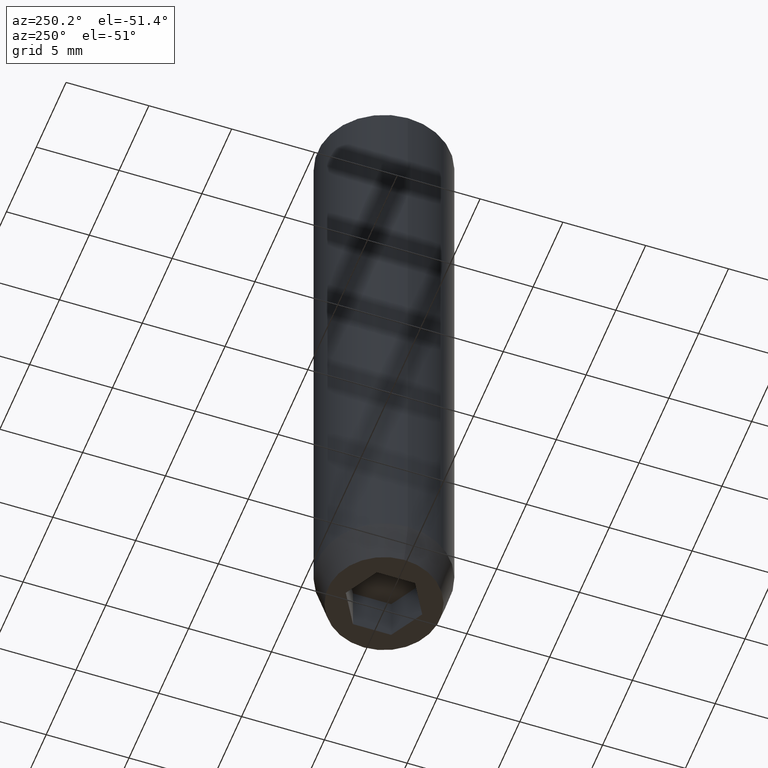
[diagram: clean part render]
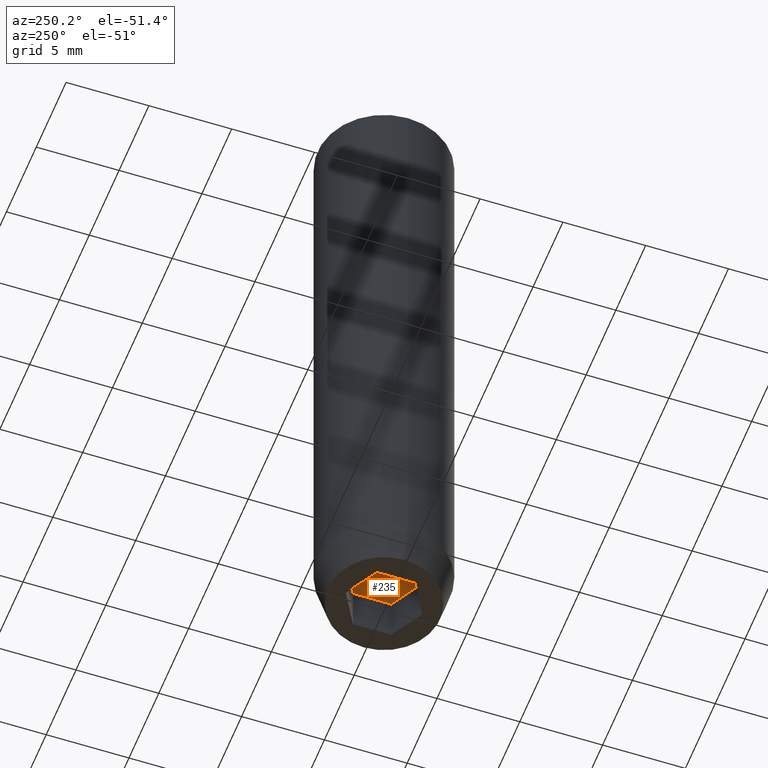
[diagram: same view with one face highlighted and labeled with its STEP entity id]
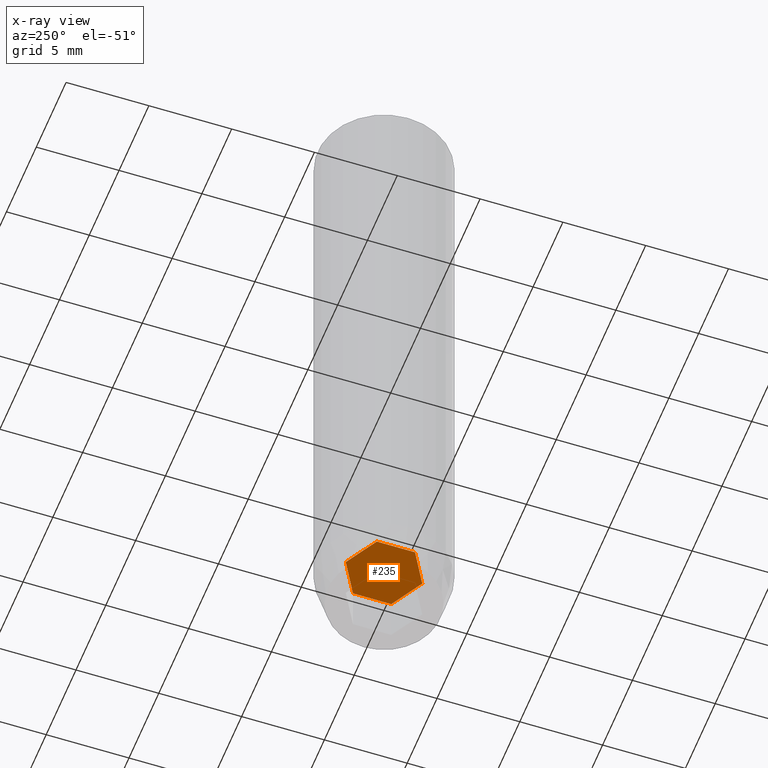
[diagram: x-ray of the same camera — body ghosted, the highlighted face saturated]
A machine part, auxiliary view. The second image highlights one B-rep face of the part: STEP entity #235.
The next image is the same camera in x-ray: the body ghosted, the highlighted face saturated — about 0% of this face is hidden behind the body in this view.
In plain terms, the highlighted planar face has unit normal (0, 0, -1).
Its self-contained STEP definition (entity closure, byte-faithful):
#5 = CARTESIAN_POINT ( 'NONE',  ( 0.9999999999999997780, -1.732050807568878747, -37.20000000000000284 ) ) ;
#6 = ORIENTED_EDGE ( 'NONE', *, *, #553, .T. ) ;
#20 = VECTOR ( 'NONE', #191, 1000.000000000000000 ) ;
#24 = CARTESIAN_POINT ( 'NONE',  ( 2.000000000000000888, -1.154700538379252572, -37.20000000000000284 ) ) ;
#40 = VERTEX_POINT ( 'NONE', #150 ) ;
#50 = ORIENTED_EDGE ( 'NONE', *, *, #311, .T. ) ;
#62 = VECTOR ( 'NONE', #352, 1000.000000000000000 ) ;
#79 = ORIENTED_EDGE ( 'NONE', *, *, #396, .T. ) ;
#117 = CARTESIAN_POINT ( 'NONE',  ( -1.999999999999998224, 1.126735949052866956E-15, -37.20000000000000284 ) ) ;
#121 = CARTESIAN_POINT ( 'NONE',  ( 0.000000000000000000, 0.000000000000000000, -37.20000000000000284 ) ) ;
#150 = CARTESIAN_POINT ( 'NONE',  ( -1.999999999999997780, 1.154700538379253238, -37.20000000000000284 ) ) ;
#160 = DIRECTION ( 'NONE',  ( 5.633679745264339711E-16, 1.000000000000000000, 0.000000000000000000 ) ) ;
#163 = DIRECTION ( 'NONE',  ( -0.8660254037844387076, 0.5000000000000001110, 0.000000000000000000 ) ) ;
#175 = VERTEX_POINT ( 'NONE', #534 ) ;
#181 = EDGE_CURVE ( 'NONE', #175, #40, #573, .T. ) ;
#191 = DIRECTION ( 'NONE',  ( 0.8660254037844385966, -0.5000000000000001110, 0.000000000000000000 ) ) ;
#219 = CARTESIAN_POINT ( 'NONE',  ( -1.000000000000000444, 1.732050807568877637, -37.20000000000000284 ) ) ;
#221 = VECTOR ( 'NONE', #160, 1000.000000000000000 ) ;
#235 = ADVANCED_FACE ( 'NONE', ( #254 ), #521, .T. ) ;
#254 = FACE_OUTER_BOUND ( 'NONE', #447, .T. ) ;
#255 = LINE ( 'NONE', #392, #418 ) ;
#263 = DIRECTION ( 'NONE',  ( -1.000000000000000000, 0.000000000000000000, -0.000000000000000000 ) ) ;
#275 = VERTEX_POINT ( 'NONE', #359 ) ;
#276 = LINE ( 'NONE', #279, #20 ) ;
#279 = CARTESIAN_POINT ( 'NONE',  ( 1.000000000000000444, 1.732050807568877637, -37.20000000000000284 ) ) ;
#297 = CARTESIAN_POINT ( 'NONE',  ( 2.000000000000000888, 0.000000000000000000, -37.20000000000000284 ) ) ;
#311 = EDGE_CURVE ( 'NONE', #479, #275, #276, .T. ) ;
#341 = ORIENTED_EDGE ( 'NONE', *, *, #483, .T. ) ;
#346 = DIRECTION ( 'NONE',  ( 0.000000000000000000, -1.000000000000000000, 0.000000000000000000 ) ) ;
#352 = DIRECTION ( 'NONE',  ( 0.8660254037844385966, 0.5000000000000001110, 0.000000000000000000 ) ) ;
#356 = LINE ( 'NONE', #297, #363 ) ;
#359 = CARTESIAN_POINT ( 'NONE',  ( 2.000000000000000888, 1.154700538379251462, -37.20000000000000284 ) ) ;
#363 = VECTOR ( 'NONE', #346, 1000.000000000000000 ) ;
#365 = VERTEX_POINT ( 'NONE', #412 ) ;
#368 = ORIENTED_EDGE ( 'NONE', *, *, #181, .T. ) ;
#372 = VECTOR ( 'NONE', #419, 1000.000000000000114 ) ;
#390 = AXIS2_PLACEMENT_3D ( 'NONE', #121, #482, #263 ) ;
#392 = CARTESIAN_POINT ( 'NONE',  ( -1.000000000000000222, -1.732050807568877637, -37.20000000000000284 ) ) ;
#396 = EDGE_CURVE ( 'NONE', #504, #365, #410, .T. ) ;
#410 = LINE ( 'NONE', #5, #372 ) ;
#412 = CARTESIAN_POINT ( 'NONE',  ( 2.168404344971008868E-16, -2.309401076758503812, -37.20000000000000284 ) ) ;
#418 = VECTOR ( 'NONE', #163, 999.9999999999998863 ) ;
#419 = DIRECTION ( 'NONE',  ( -0.8660254037844388186, -0.4999999999999996114, 0.000000000000000000 ) ) ;
#447 = EDGE_LOOP ( 'NONE', ( #506, #50, #6, #79, #341, #368 ) ) ;
#479 = VERTEX_POINT ( 'NONE', #576 ) ;
#482 = DIRECTION ( 'NONE',  ( 0.000000000000000000, 0.000000000000000000, -1.000000000000000000 ) ) ;
#483 = EDGE_CURVE ( 'NONE', #365, #175, #255, .T. ) ;
#504 = VERTEX_POINT ( 'NONE', #24 ) ;
#506 = ORIENTED_EDGE ( 'NONE', *, *, #526, .T. ) ;
#521 = PLANE ( 'NONE',  #390 ) ;
#526 = EDGE_CURVE ( 'NONE', #40, #479, #571, .T. ) ;
#534 = CARTESIAN_POINT ( 'NONE',  ( -1.999999999999998668, -1.154700538379252572, -37.20000000000000284 ) ) ;
#553 = EDGE_CURVE ( 'NONE', #275, #504, #356, .T. ) ;
#571 = LINE ( 'NONE', #219, #62 ) ;
#573 = LINE ( 'NONE', #117, #221 ) ;
#576 = CARTESIAN_POINT ( 'NONE',  ( 0.000000000000000000, 2.309401076758503812, -37.20000000000000284 ) ) ;